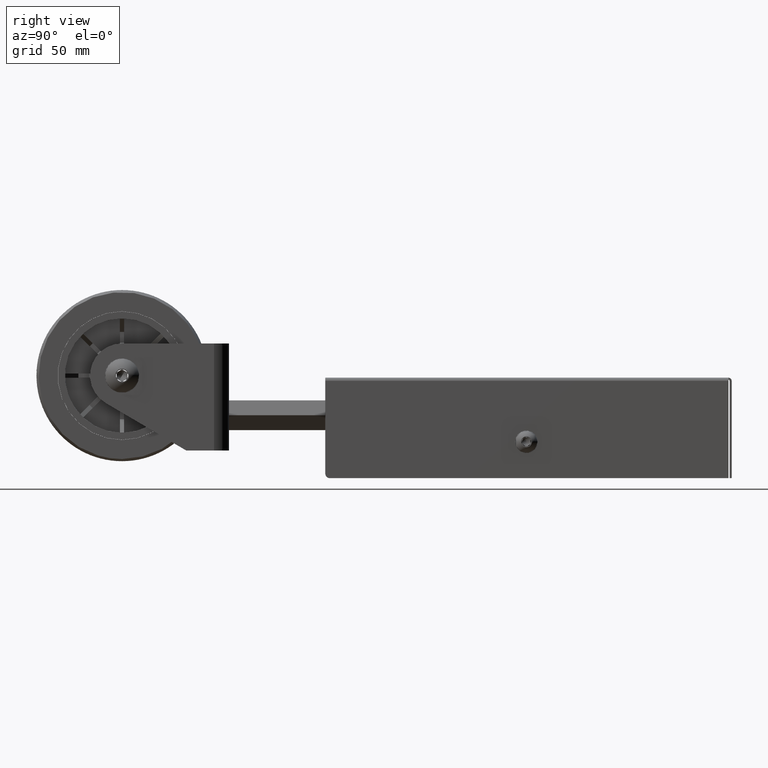
[diagram: clean part render]
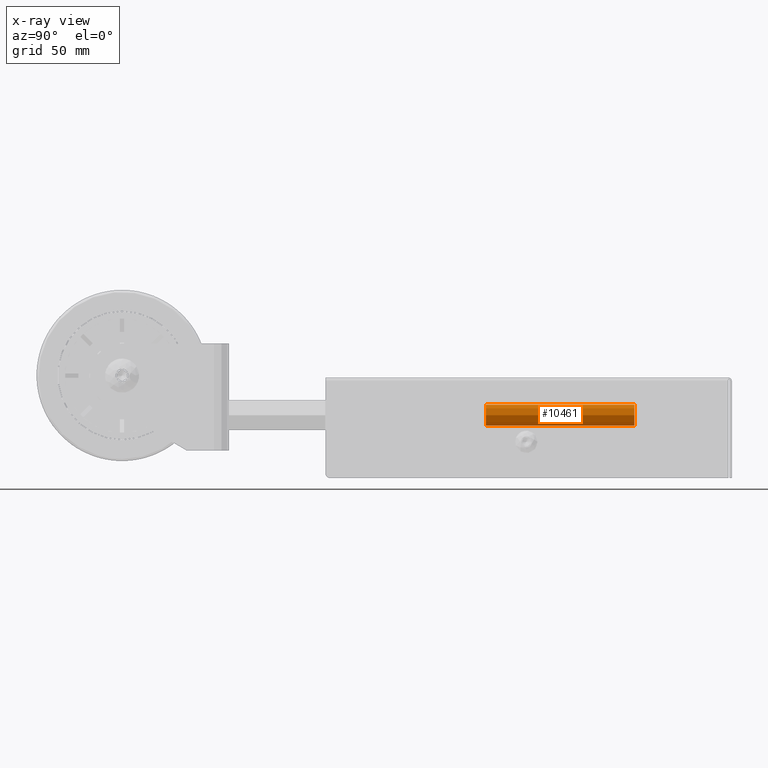
[diagram: x-ray — body ghosted, one internal face saturated and labeled with its STEP entity id]
A machine part, right view, then the same camera in x-ray: the body is ghosted and one INTERNAL B-rep face — a face not visible from any outside direction — is saturated and labeled: STEP entity #10461.
In plain terms, the highlighted cylindrical surface (bore or boss wall) has radius 5 mm, axis along (-0, -1, 0).
Its self-contained STEP definition (entity closure, byte-faithful):
#9821 = CIRCLE ( 'NONE', #49925, 5.000000000000000000 ) ;
#10461 = ADVANCED_FACE ( 'NONE', ( #70966, #18761 ), #42466, .T. ) ;
#14531 = AXIS2_PLACEMENT_3D ( 'NONE', #23749, #23497, #66203 ) ;
#18761 = FACE_OUTER_BOUND ( 'NONE', #48725, .T. ) ;
#23497 = DIRECTION ( 'NONE',  ( 0.0000000000000000000, -1.000000000000000000, 0.0000000000000000000 ) ) ;
#23749 = CARTESIAN_POINT ( 'NONE',  ( 0.0000000000000000000, 189.5000000000000000, 0.0000000000000000000 ) ) ;
#24816 = VERTEX_POINT ( 'NONE', #67658 ) ;
#25677 = AXIS2_PLACEMENT_3D ( 'NONE', #67229, #78367, #36752 ) ;
#36752 = DIRECTION ( 'NONE',  ( 0.0000000000000000000, 0.0000000000000000000, -1.000000000000000000 ) ) ;
#42466 = CYLINDRICAL_SURFACE ( 'NONE', #25677, 5.000000000000000000 ) ;
#45231 = CARTESIAN_POINT ( 'NONE',  ( 0.0000000000000000000, 120.0000000000000000, 0.0000000000000000000 ) ) ;
#48725 = EDGE_LOOP ( 'NONE', ( #74559 ) ) ;
#49925 = AXIS2_PLACEMENT_3D ( 'NONE', #45231, #69631, #68592 ) ;
#66203 = DIRECTION ( 'NONE',  ( 0.0000000000000000000, 0.0000000000000000000, 1.000000000000000000 ) ) ;
#67229 = CARTESIAN_POINT ( 'NONE',  ( 0.0000000000000000000, 190.5000000000000000, 0.0000000000000000000 ) ) ;
#67658 = CARTESIAN_POINT ( 'NONE',  ( 0.0000000000000000000, 120.0000000000000000, 5.000000000000000000 ) ) ;
#68592 = DIRECTION ( 'NONE',  ( 0.0000000000000000000, 0.0000000000000000000, 1.000000000000000000 ) ) ;
#69631 = DIRECTION ( 'NONE',  ( 0.0000000000000000000, 1.000000000000000000, 0.0000000000000000000 ) ) ;
#70343 = VERTEX_POINT ( 'NONE', #72475 ) ;
#70966 = FACE_OUTER_BOUND ( 'NONE', #71531, .T. ) ;
#71147 = EDGE_CURVE ( 'NONE', #24816, #24816, #9821, .T. ) ;
#71531 = EDGE_LOOP ( 'NONE', ( #73248 ) ) ;
#72475 = CARTESIAN_POINT ( 'NONE',  ( 0.0000000000000000000, 189.5000000000000000, 5.000000000000000000 ) ) ;
#73248 = ORIENTED_EDGE ( 'NONE', *, *, #73559, .T. ) ;
#73559 = EDGE_CURVE ( 'NONE', #70343, #70343, #75021, .T. ) ;
#74559 = ORIENTED_EDGE ( 'NONE', *, *, #71147, .T. ) ;
#75021 = CIRCLE ( 'NONE', #14531, 5.000000000000000000 ) ;
#78367 = DIRECTION ( 'NONE',  ( -0.0000000000000000000, -1.000000000000000000, -0.0000000000000000000 ) ) ;